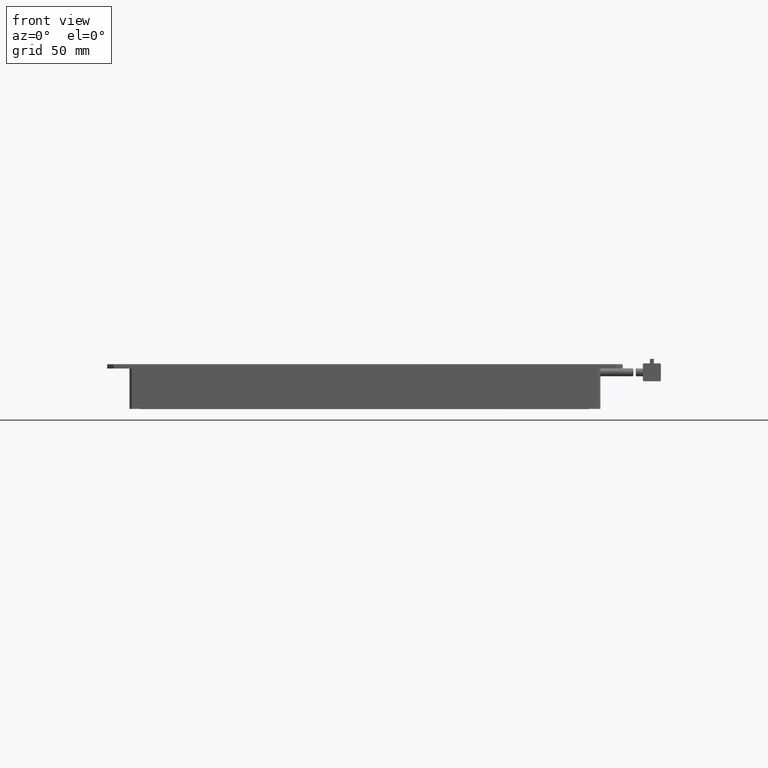
[diagram: clean part render]
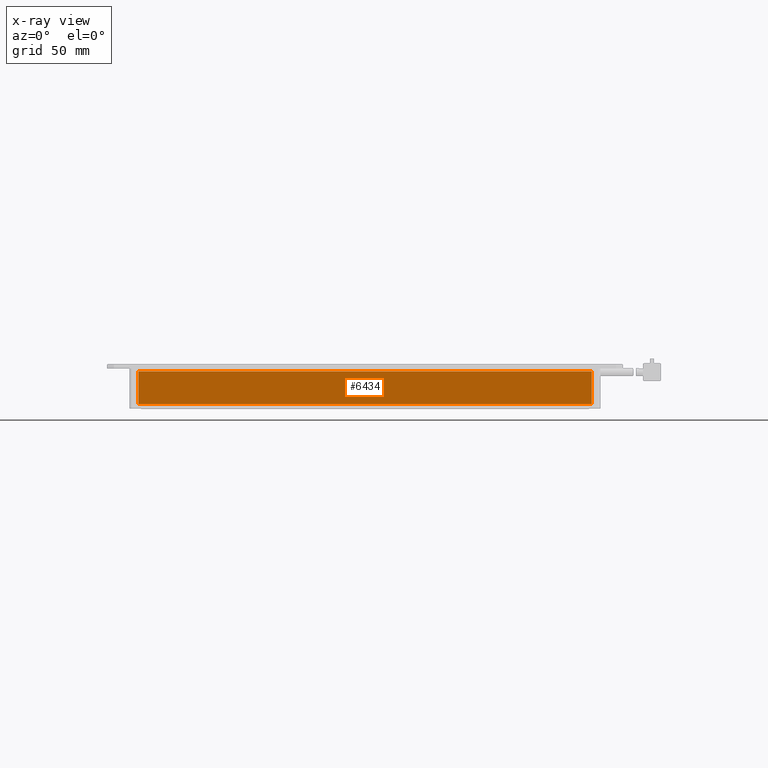
[diagram: x-ray — body ghosted, one internal face saturated and labeled with its STEP entity id]
A machine part, front view, then the same camera in x-ray: the body is ghosted and one INTERNAL B-rep face — a face not visible from any outside direction — is saturated and labeled: STEP entity #6434.
In plain terms, the highlighted planar face has unit normal (-0, 1, 0).
Its self-contained STEP definition (entity closure, byte-faithful):
#607 = VECTOR ( 'NONE', #16496, 1000.000000000000000 ) ;
#889 = CARTESIAN_POINT ( 'NONE',  ( 119.8157505824761700, -133.3787539827808100, -16.00000000002364700 ) ) ;
#969 = AXIS2_PLACEMENT_3D ( 'NONE', #3769, #15896, #5534 ) ;
#1578 = VERTEX_POINT ( 'NONE', #5709 ) ;
#3769 = CARTESIAN_POINT ( 'NONE',  ( 18.66575058247614600, -133.3787539827808100, -8.000000000023650400 ) ) ;
#5246 = LINE ( 'NONE', #19938, #9307 ) ;
#5426 = LINE ( 'NONE', #9192, #9482 ) ;
#5534 = DIRECTION ( 'NONE',  ( 1.000000000000000000, 1.243375699538492300E-016, 1.243375699538492300E-016 ) ) ;
#5709 = CARTESIAN_POINT ( 'NONE',  ( 119.8157505824761700, -133.3787539827808100, -1.300000000023622500 ) ) ;
#5839 = LINE ( 'NONE', #17387, #15044 ) ;
#6234 = EDGE_CURVE ( 'NONE', #18512, #9696, #14474, .T. ) ;
#6244 = EDGE_CURVE ( 'NONE', #9696, #11060, #5246, .T. ) ;
#6434 = ADVANCED_FACE ( 'NONE', ( #17376 ), #14109, .T. ) ;
#6730 = EDGE_LOOP ( 'NONE', ( #16403, #16913, #17527, #18530 ) ) ;
#8781 = CARTESIAN_POINT ( 'NONE',  ( -82.48424941752384100, -133.3787539827808400, -1.300000000023647800 ) ) ;
#9192 = CARTESIAN_POINT ( 'NONE',  ( 119.8157505824761700, -133.3787539827808100, -2.364775042451583400E-011 ) ) ;
#9307 = VECTOR ( 'NONE', #21702, 1000.000000000000000 ) ;
#9482 = VECTOR ( 'NONE', #10935, 1000.000000000000000 ) ;
#9696 = VERTEX_POINT ( 'NONE', #21545 ) ;
#10935 = DIRECTION ( 'NONE',  ( 1.243375699538492300E-016, 1.545983130202835100E-032, -1.000000000000000000 ) ) ;
#11060 = VERTEX_POINT ( 'NONE', #8781 ) ;
#13796 = EDGE_CURVE ( 'NONE', #1578, #18512, #5426, .T. ) ;
#14109 = PLANE ( 'NONE',  #969 ) ;
#14474 = LINE ( 'NONE', #889, #607 ) ;
#15044 = VECTOR ( 'NONE', #20934, 1000.000000000000000 ) ;
#15326 = CARTESIAN_POINT ( 'NONE',  ( 119.8157505824761700, -133.3787539827808100, -16.00000000002364700 ) ) ;
#15896 = DIRECTION ( 'NONE',  ( -1.243375699538492300E-016, 1.000000000000000000, 0.0000000000000000000 ) ) ;
#16403 = ORIENTED_EDGE ( 'NONE', *, *, #6234, .T. ) ;
#16496 = DIRECTION ( 'NONE',  ( -1.000000000000000000, -1.243375699538492300E-016, -4.287502412201677900E-018 ) ) ;
#16913 = ORIENTED_EDGE ( 'NONE', *, *, #6244, .T. ) ;
#17376 = FACE_OUTER_BOUND ( 'NONE', #6730, .T. ) ;
#17387 = CARTESIAN_POINT ( 'NONE',  ( 18.66575058247614600, -133.3787539827808100, -1.300000000023635600 ) ) ;
#17527 = ORIENTED_EDGE ( 'NONE', *, *, #20291, .T. ) ;
#18512 = VERTEX_POINT ( 'NONE', #15326 ) ;
#18530 = ORIENTED_EDGE ( 'NONE', *, *, #13796, .T. ) ;
#19938 = CARTESIAN_POINT ( 'NONE',  ( -82.48424941752384100, -133.3787539827808400, -2.364775042451583400E-011 ) ) ;
#20291 = EDGE_CURVE ( 'NONE', #11060, #1578, #5839, .T. ) ;
#20934 = DIRECTION ( 'NONE',  ( 1.000000000000000000, 1.243375699538492300E-016, 1.243375699538492300E-016 ) ) ;
#21545 = CARTESIAN_POINT ( 'NONE',  ( -82.48424941752384100, -133.3787539827808400, -16.00000000002365400 ) ) ;
#21702 = DIRECTION ( 'NONE',  ( -1.243375699538492300E-016, -1.545983130202835100E-032, 1.000000000000000000 ) ) ;